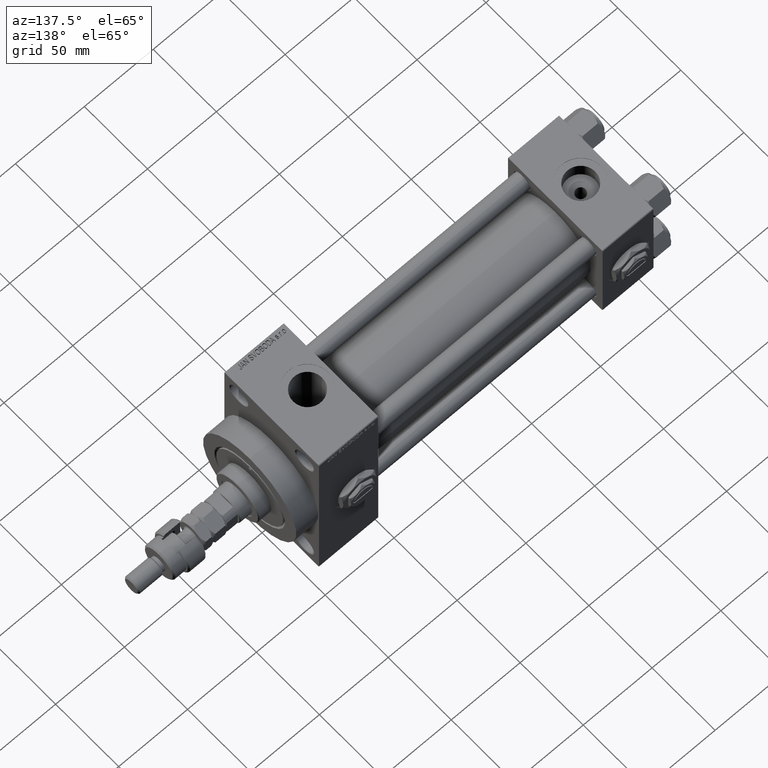
[diagram: clean part render]
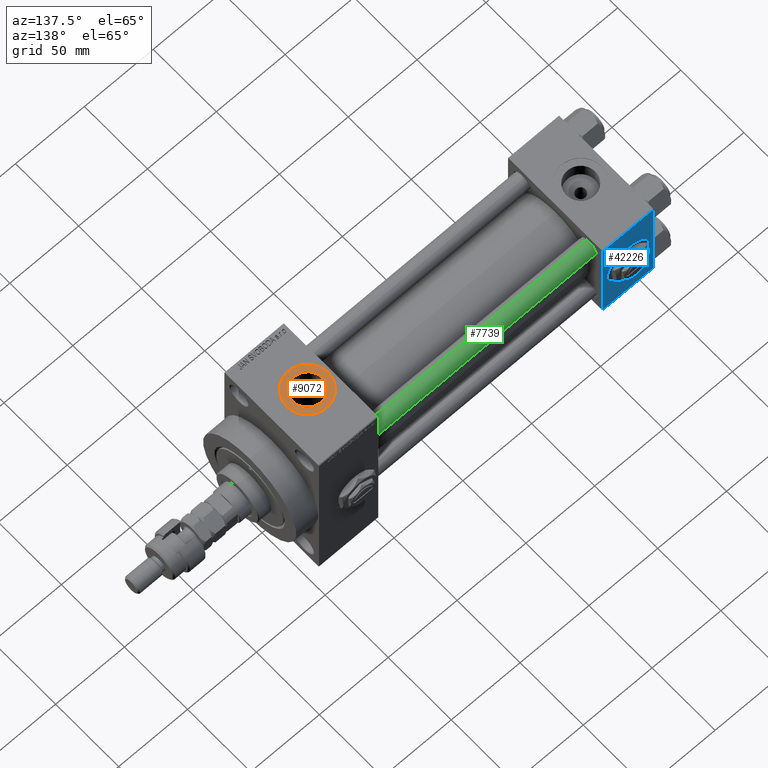
[diagram: same view with three faces highlighted in distinct colors, each labeled with its STEP entity id]
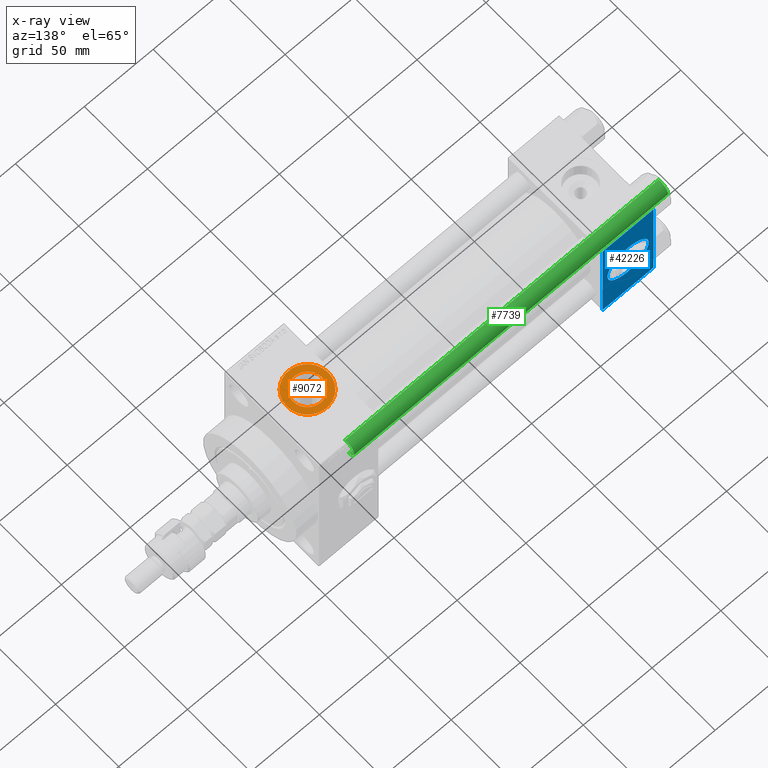
[diagram: x-ray of the same camera — body ghosted, the three highlighted faces saturated]
A machine part, auxiliary view with three faces highlighted in distinct colors.
The next image is the same camera in x-ray (body ghosted, the three faces saturated) — at least one of them is partly hidden behind the body in this view.
Their STEP definitions:

[orange] entity #9072 — the highlighted planar face has unit normal (0, 0, 1).
#429 = VERTEX_POINT ( 'NONE', #50992 ) ;
#583 = CIRCLE ( 'NONE', #30189, 10.47999999999998977 ) ;
#1954 = CIRCLE ( 'NONE', #13787, 15.00000000000001421 ) ;
#2471 = VERTEX_POINT ( 'NONE', #46263 ) ;
#3986 = CARTESIAN_POINT ( 'NONE',  ( 217.0000000000000284, -1.184237892933500047E-14, 63.79999999999996874 ) ) ;
#6345 = VERTEX_POINT ( 'NONE', #29188 ) ;
#7896 = AXIS2_PLACEMENT_3D ( 'NONE', #31163, #11029, #27185 ) ;
#8366 = DIRECTION ( 'NONE',  ( 1.000000000000000000, 0.000000000000000000, 0.000000000000000000 ) ) ;
#9072 = ADVANCED_FACE ( 'NONE', ( #52149, #23310 ), #31533, .T. ) ;
#10137 = EDGE_CURVE ( 'NONE', #2471, #6345, #1954, .T. ) ;
#11029 = DIRECTION ( 'NONE',  ( -0.000000000000000000, -0.000000000000000000, -1.000000000000000000 ) ) ;
#11209 = EDGE_LOOP ( 'NONE', ( #46707, #28166 ) ) ;
#11618 = EDGE_CURVE ( 'NONE', #429, #11802, #26500, .T. ) ;
#11802 = VERTEX_POINT ( 'NONE', #26352 ) ;
#12842 = AXIS2_PLACEMENT_3D ( 'NONE', #3986, #47413, #39487 ) ;
#13224 = CARTESIAN_POINT ( 'NONE',  ( 217.0000000000000284, -1.184237892933500047E-14, 63.79999999999996874 ) ) ;
#13787 = AXIS2_PLACEMENT_3D ( 'NONE', #13224, #45537, #33643 ) ;
#19484 = EDGE_CURVE ( 'NONE', #6345, #2471, #46138, .T. ) ;
#20271 = ORIENTED_EDGE ( 'NONE', *, *, #36202, .T. ) ;
#23296 = AXIS2_PLACEMENT_3D ( 'NONE', #32234, #51532, #27733 ) ;
#23310 = FACE_OUTER_BOUND ( 'NONE', #11209, .T. ) ;
#26352 = CARTESIAN_POINT ( 'NONE',  ( 227.4800000000000182, -1.055894908382857656E-14, 63.79999999999996874 ) ) ;
#26500 = CIRCLE ( 'NONE', #7896, 10.47999999999998977 ) ;
#27185 = DIRECTION ( 'NONE',  ( 1.000000000000000000, 0.000000000000000000, 0.000000000000000000 ) ) ;
#27733 = DIRECTION ( 'NONE',  ( 1.000000000000000000, 0.000000000000000000, 0.000000000000000000 ) ) ;
#28166 = ORIENTED_EDGE ( 'NONE', *, *, #19484, .T. ) ;
#29188 = CARTESIAN_POINT ( 'NONE',  ( 202.0000000000000000, -1.000540873061396536E-14, 63.79999999999996874 ) ) ;
#30189 = AXIS2_PLACEMENT_3D ( 'NONE', #51515, #47824, #8366 ) ;
#30318 = ORIENTED_EDGE ( 'NONE', *, *, #11618, .T. ) ;
#31163 = CARTESIAN_POINT ( 'NONE',  ( 217.0000000000000284, -1.184237892933500047E-14, 63.79999999999996874 ) ) ;
#31533 = PLANE ( 'NONE',  #12842 ) ;
#32234 = CARTESIAN_POINT ( 'NONE',  ( 217.0000000000000284, -1.184237892933500047E-14, 63.79999999999996874 ) ) ;
#33643 = DIRECTION ( 'NONE',  ( 1.000000000000000000, 0.000000000000000000, 0.000000000000000000 ) ) ;
#36202 = EDGE_CURVE ( 'NONE', #11802, #429, #583, .T. ) ;
#39078 = EDGE_LOOP ( 'NONE', ( #30318, #20271 ) ) ;
#39487 = DIRECTION ( 'NONE',  ( 1.000000000000000000, 0.000000000000000000, -0.000000000000000000 ) ) ;
#45537 = DIRECTION ( 'NONE',  ( 0.000000000000000000, 0.000000000000000000, 1.000000000000000000 ) ) ;
#46138 = CIRCLE ( 'NONE', #23296, 15.00000000000001421 ) ;
#46263 = CARTESIAN_POINT ( 'NONE',  ( 232.0000000000000284, -1.184237892933500047E-14, 63.79999999999996874 ) ) ;
#46707 = ORIENTED_EDGE ( 'NONE', *, *, #10137, .T. ) ;
#47413 = DIRECTION ( 'NONE',  ( 0.000000000000000000, 0.000000000000000000, 1.000000000000000000 ) ) ;
#47824 = DIRECTION ( 'NONE',  ( -0.000000000000000000, -0.000000000000000000, -1.000000000000000000 ) ) ;
#50992 = CARTESIAN_POINT ( 'NONE',  ( 206.5200000000000387, -1.184237892933500047E-14, 63.79999999999996874 ) ) ;
#51515 = CARTESIAN_POINT ( 'NONE',  ( 217.0000000000000284, -1.184237892933500047E-14, 63.79999999999996874 ) ) ;
#51532 = DIRECTION ( 'NONE',  ( 0.000000000000000000, 0.000000000000000000, 1.000000000000000000 ) ) ;
#52149 = FACE_BOUND ( 'NONE', #39078, .T. ) ;

[blue] entity #42226 — the highlighted planar face has unit normal (0, 1, 0).
#421 = DIRECTION ( 'NONE',  ( 0.000000000000000000, 0.000000000000000000, -1.000000000000000000 ) ) ;
#886 = ORIENTED_EDGE ( 'NONE', *, *, #48081, .T. ) ;
#1301 = EDGE_CURVE ( 'NONE', #41260, #21167, #6799, .T. ) ;
#1393 = VECTOR ( 'NONE', #421, 1000.000000000000000 ) ;
#1733 = CIRCLE ( 'NONE', #35556, 15.00000000000000178 ) ;
#6276 = DIRECTION ( 'NONE',  ( 0.000000000000000000, 0.000000000000000000, 1.000000000000000000 ) ) ;
#6799 = LINE ( 'NONE', #15250, #46470 ) ;
#8075 = CARTESIAN_POINT ( 'NONE',  ( 37.00000000000000000, 37.49999999999999289, -36.99999999999998579 ) ) ;
#8622 = CARTESIAN_POINT ( 'NONE',  ( 37.00000000000000000, 37.49999999999999289, 37.50000000000000000 ) ) ;
#10171 = ORIENTED_EDGE ( 'NONE', *, *, #35209, .T. ) ;
#11545 = DIRECTION ( 'NONE',  ( 0.000000000000000000, 0.000000000000000000, -1.000000000000000000 ) ) ;
#13979 = EDGE_CURVE ( 'NONE', #46591, #20783, #24016, .T. ) ;
#14725 = AXIS2_PLACEMENT_3D ( 'NONE', #18088, #26564, #42204 ) ;
#14730 = CARTESIAN_POINT ( 'NONE',  ( 18.50000000000000000, 37.49999999999999289, 0.000000000000000000 ) ) ;
#15250 = CARTESIAN_POINT ( 'NONE',  ( 0.000000000000000000, 37.49999999999999289, 37.50000000000000000 ) ) ;
#16911 = CARTESIAN_POINT ( 'NONE',  ( 37.00000000000000000, 37.49999999999999289, 37.50000000000000000 ) ) ;
#16930 = CARTESIAN_POINT ( 'NONE',  ( 18.50000000000000355, 37.49999999999999289, -15.00000000000000178 ) ) ;
#17172 = DIRECTION ( 'NONE',  ( -0.000000000000000000, 1.000000000000000000, 0.000000000000000000 ) ) ;
#18088 = CARTESIAN_POINT ( 'NONE',  ( 18.50000000000000000, 37.49999999999999289, 0.000000000000000000 ) ) ;
#20783 = VERTEX_POINT ( 'NONE', #16930 ) ;
#21167 = VERTEX_POINT ( 'NONE', #28793 ) ;
#21788 = VERTEX_POINT ( 'NONE', #39594 ) ;
#23179 = EDGE_LOOP ( 'NONE', ( #10171, #886, #48984, #41178 ) ) ;
#23825 = CARTESIAN_POINT ( 'NONE',  ( 37.00000000000000000, 37.49999999999999289, -36.99999999999998579 ) ) ;
#23912 = ORIENTED_EDGE ( 'NONE', *, *, #46322, .F. ) ;
#24016 = CIRCLE ( 'NONE', #14725, 15.00000000000000178 ) ;
#25001 = ORIENTED_EDGE ( 'NONE', *, *, #13979, .F. ) ;
#25257 = VECTOR ( 'NONE', #42590, 1000.000000000000000 ) ;
#26440 = CARTESIAN_POINT ( 'NONE',  ( 37.00000000000000000, 37.49999999999999289, 37.00000000000000000 ) ) ;
#26564 = DIRECTION ( 'NONE',  ( 0.000000000000000000, 1.000000000000000000, 0.000000000000000000 ) ) ;
#28793 = CARTESIAN_POINT ( 'NONE',  ( 0.000000000000000000, 37.49999999999999289, -36.99999999999998579 ) ) ;
#29692 = VECTOR ( 'NONE', #33961, 1000.000000000000000 ) ;
#30585 = CARTESIAN_POINT ( 'NONE',  ( 18.50000000000000000, 37.49999999999999289, 15.00000000000000178 ) ) ;
#32998 = LINE ( 'NONE', #8622, #1393 ) ;
#33339 = DIRECTION ( 'NONE',  ( 0.000000000000000000, -0.000000000000000000, 1.000000000000000000 ) ) ;
#33961 = DIRECTION ( 'NONE',  ( -1.000000000000000000, 0.000000000000000000, 0.000000000000000000 ) ) ;
#34891 = DIRECTION ( 'NONE',  ( 0.000000000000000000, 1.000000000000000000, 0.000000000000000000 ) ) ;
#35209 = EDGE_CURVE ( 'NONE', #21788, #47315, #32998, .T. ) ;
#35556 = AXIS2_PLACEMENT_3D ( 'NONE', #14730, #34891, #6276 ) ;
#37057 = PLANE ( 'NONE',  #46465 ) ;
#39594 = CARTESIAN_POINT ( 'NONE',  ( 37.00000000000000000, 37.49999999999999289, 37.00000000000000000 ) ) ;
#40386 = EDGE_CURVE ( 'NONE', #41260, #21788, #46553, .T. ) ;
#40485 = CARTESIAN_POINT ( 'NONE',  ( 0.000000000000000000, 37.49999999999999289, 37.00000000000000000 ) ) ;
#41015 = FACE_OUTER_BOUND ( 'NONE', #23179, .T. ) ;
#41178 = ORIENTED_EDGE ( 'NONE', *, *, #40386, .T. ) ;
#41260 = VERTEX_POINT ( 'NONE', #40485 ) ;
#42204 = DIRECTION ( 'NONE',  ( 0.000000000000000000, 0.000000000000000000, 1.000000000000000000 ) ) ;
#42226 = ADVANCED_FACE ( 'NONE', ( #47703, #41015 ), #37057, .T. ) ;
#42590 = DIRECTION ( 'NONE',  ( 1.000000000000000000, 0.000000000000000000, 0.000000000000000000 ) ) ;
#46322 = EDGE_CURVE ( 'NONE', #20783, #46591, #1733, .T. ) ;
#46465 = AXIS2_PLACEMENT_3D ( 'NONE', #16911, #17172, #33339 ) ;
#46470 = VECTOR ( 'NONE', #11545, 1000.000000000000000 ) ;
#46553 = LINE ( 'NONE', #26440, #25257 ) ;
#46591 = VERTEX_POINT ( 'NONE', #30585 ) ;
#46658 = EDGE_LOOP ( 'NONE', ( #25001, #23912 ) ) ;
#47315 = VERTEX_POINT ( 'NONE', #23825 ) ;
#47703 = FACE_BOUND ( 'NONE', #46658, .T. ) ;
#48081 = EDGE_CURVE ( 'NONE', #47315, #21167, #52271, .T. ) ;
#48984 = ORIENTED_EDGE ( 'NONE', *, *, #1301, .F. ) ;
#52271 = LINE ( 'NONE', #8075, #29692 ) ;

[green] entity #7739 — the highlighted cylindrical surface (edge-blend (fillet) strip) has radius 6 mm, axis along (-1, -0, 0).
#1218 = DIRECTION ( 'NONE',  ( 1.000000000000000000, 0.000000000000000000, 0.000000000000000000 ) ) ;
#2263 = AXIS2_PLACEMENT_3D ( 'NONE', #5432, #32465, #1218 ) ;
#3082 = ORIENTED_EDGE ( 'NONE', *, *, #39941, .F. ) ;
#3864 = VERTEX_POINT ( 'NONE', #48547 ) ;
#4096 = VECTOR ( 'NONE', #12220, 1000.000000000000000 ) ;
#4345 = AXIS2_PLACEMENT_3D ( 'NONE', #38509, #34018, #26582 ) ;
#5432 = CARTESIAN_POINT ( 'NONE',  ( 0.000000000000000000, 0.000000000000000000, 228.5000000000001137 ) ) ;
#5629 = AXIS2_PLACEMENT_3D ( 'NONE', #34855, #14691, #51205 ) ;
#7493 = ORIENTED_EDGE ( 'NONE', *, *, #35169, .T. ) ;
#7739 = ADVANCED_FACE ( 'NONE', ( #14643 ), #18105, .T. ) ;
#12220 = DIRECTION ( 'NONE',  ( -0.000000000000000000, -0.000000000000000000, -1.000000000000000000 ) ) ;
#13195 = VECTOR ( 'NONE', #15970, 1000.000000000000000 ) ;
#14088 = ORIENTED_EDGE ( 'NONE', *, *, #30927, .T. ) ;
#14643 = FACE_OUTER_BOUND ( 'NONE', #49439, .T. ) ;
#14691 = DIRECTION ( 'NONE',  ( -0.000000000000000000, -0.000000000000000000, 1.000000000000000000 ) ) ;
#15970 = DIRECTION ( 'NONE',  ( -0.000000000000000000, -0.000000000000000000, -1.000000000000000000 ) ) ;
#17800 = ORIENTED_EDGE ( 'NONE', *, *, #21698, .T. ) ;
#18105 = CYLINDRICAL_SURFACE ( 'NONE', #4345, 6.000000000000000888 ) ;
#21698 = EDGE_CURVE ( 'NONE', #3864, #51962, #37771, .T. ) ;
#24189 = CIRCLE ( 'NONE', #2263, 6.000000000000000888 ) ;
#26582 = DIRECTION ( 'NONE',  ( -1.000000000000000000, 0.000000000000000000, 0.000000000000000000 ) ) ;
#27633 = LINE ( 'NONE', #48521, #13195 ) ;
#30369 = VERTEX_POINT ( 'NONE', #33106 ) ;
#30391 = CARTESIAN_POINT ( 'NONE',  ( -6.000000000000000888, 0.000000000000000000, 0.5000000000001392220 ) ) ;
#30927 = EDGE_CURVE ( 'NONE', #30369, #3864, #27633, .T. ) ;
#32465 = DIRECTION ( 'NONE',  ( 0.000000000000000000, 0.000000000000000000, -1.000000000000000000 ) ) ;
#33106 = CARTESIAN_POINT ( 'NONE',  ( 6.000000000000000888, 7.347880794884119736E-16, 228.5000000000001137 ) ) ;
#34018 = DIRECTION ( 'NONE',  ( -0.000000000000000000, -0.000000000000000000, -1.000000000000000000 ) ) ;
#34855 = CARTESIAN_POINT ( 'NONE',  ( 0.000000000000000000, 0.000000000000000000, 0.5000000000001392220 ) ) ;
#35169 = EDGE_CURVE ( 'NONE', #41974, #30369, #24189, .T. ) ;
#36087 = CARTESIAN_POINT ( 'NONE',  ( -6.000000000000000888, 0.000000000000000000, 229.0000000000000000 ) ) ;
#37446 = CARTESIAN_POINT ( 'NONE',  ( -6.000000000000000888, 0.000000000000000000, 228.5000000000001137 ) ) ;
#37771 = CIRCLE ( 'NONE', #5629, 6.000000000000000888 ) ;
#38509 = CARTESIAN_POINT ( 'NONE',  ( 0.000000000000000000, 0.000000000000000000, 229.0000000000000000 ) ) ;
#39941 = EDGE_CURVE ( 'NONE', #41974, #51962, #44516, .T. ) ;
#41974 = VERTEX_POINT ( 'NONE', #37446 ) ;
#44516 = LINE ( 'NONE', #36087, #4096 ) ;
#48521 = CARTESIAN_POINT ( 'NONE',  ( 6.000000000000000888, 7.347880794884119736E-16, 229.0000000000000000 ) ) ;
#48547 = CARTESIAN_POINT ( 'NONE',  ( 6.000000000000000888, 7.347880794884119736E-16, 0.5000000000001392220 ) ) ;
#49439 = EDGE_LOOP ( 'NONE', ( #7493, #14088, #17800, #3082 ) ) ;
#51205 = DIRECTION ( 'NONE',  ( 1.000000000000000000, 0.000000000000000000, 0.000000000000000000 ) ) ;
#51962 = VERTEX_POINT ( 'NONE', #30391 ) ;